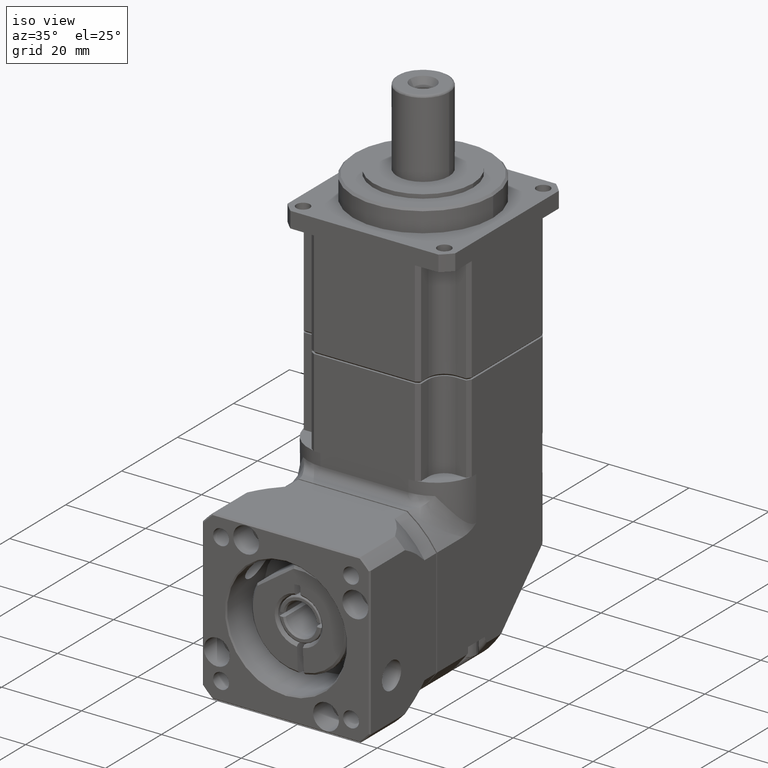
[diagram: clean part render]
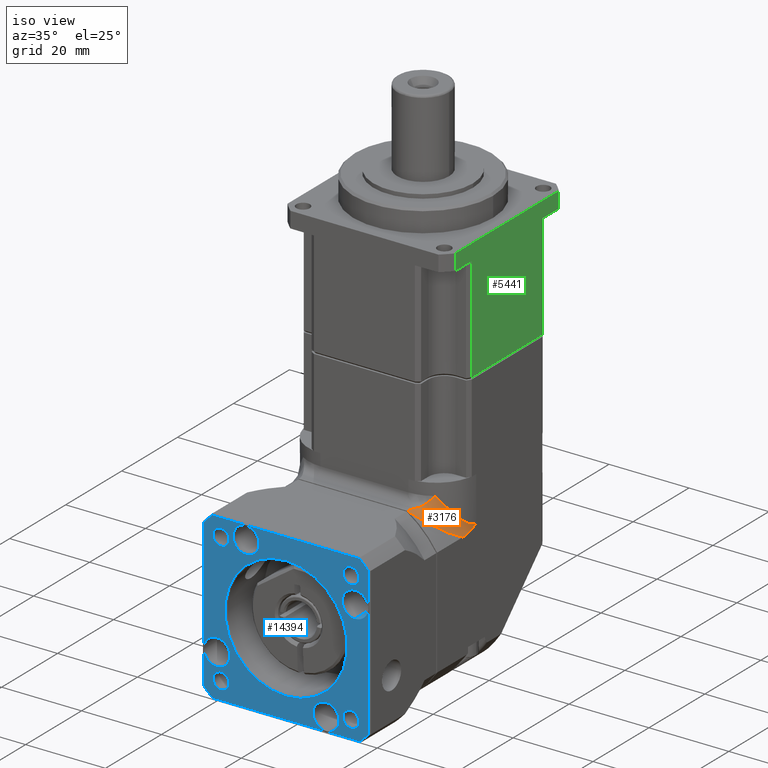
[diagram: same view with three faces highlighted in distinct colors, each labeled with its STEP entity id]
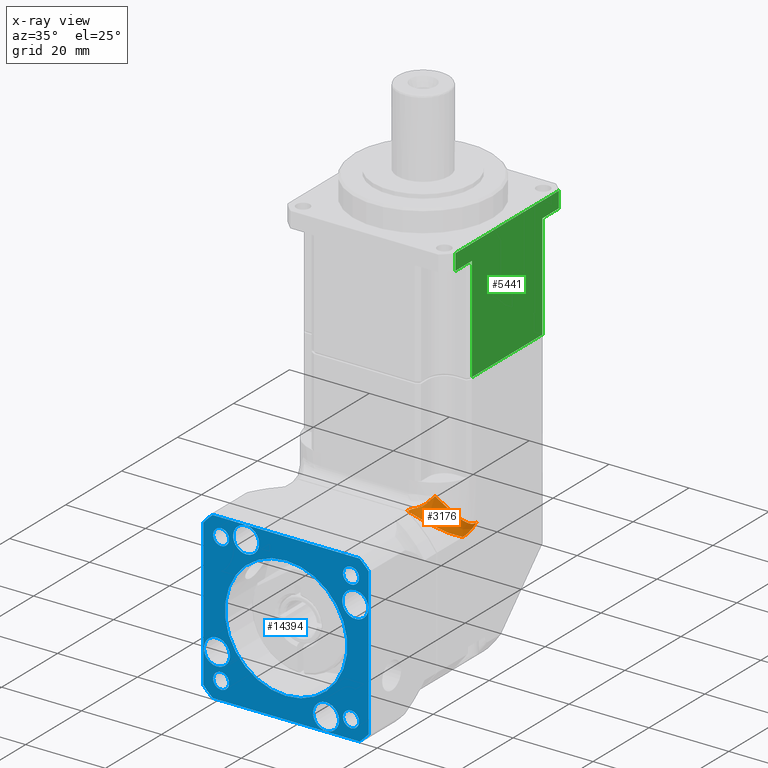
[diagram: x-ray of the same camera — body ghosted, the three highlighted faces saturated]
A machine part, iso view with three faces highlighted in distinct colors.
The next image is the same camera in x-ray (body ghosted, the three faces saturated) — at least one of them is partly hidden behind the body in this view.
Their STEP definitions:

[orange] entity #3176 — the highlighted face is a freeform B-spline surface patch.
#108 = CARTESIAN_POINT ( 'NONE',  ( 21.00000000000000000, 11.78850872954681300, -15.08398018612353100 ) ) ;
#243 = CARTESIAN_POINT ( 'NONE',  ( 19.55375498839907800, 8.818128298141456200, -10.77481007368166700 ) ) ;
#246 = CARTESIAN_POINT ( 'NONE',  ( 20.99999999999999600, 13.82935090452482100, -14.15367475274821100 ) ) ;
#325 = B_SPLINE_CURVE_WITH_KNOTS ( 'NONE', 3,
 ( #18995, #4136, #2619, #10048, #1076, #2552, #13038, #14547, #11677, #16065, #7073, #8607, #13096, #14604, #5650, #16125, #7140, #17623, #13158, #19252, #14865, #1322, #5906, #11999, #11740, #17957, #19190 ),
 .UNSPECIFIED., .F., .F.,
 ( 4, 2, 2, 2, 1, 1, 1, 2, 2, 2, 1, 1, 1, 1, 2, 2, 4 ),
 ( 0.0000000000000000000, 0.2499999999999990600, 0.3749999999999986100, 0.4374999999999985000, 0.4687499999999983900, 0.4843749999999985000, 0.4921874999999985000, 0.4960937499999983900, 0.4999999999999983300, 0.6250000000000006700, 0.6875000000000020000, 0.7187500000000028900, 0.7343750000000032200, 0.7421875000000036600, 0.7460937500000040000, 0.7500000000000042200, 1.000000000000000000 ),
 .UNSPECIFIED. ) ;
#874 = B_SPLINE_CURVE_WITH_KNOTS ( 'NONE', 3,
 ( #5837, #14795, #7138, #11794, #10242, #1248, #17694, #4066, #13294, #4254, #16124, #11676, #4134, #14546, #7071, #2813, #5649, #19055, #16312, #7338, #2618, #10107, #19189, #5586, #16063, #17555, #16179, #13095, #1130, #8667, #19131, #11738, #10167, #13157, #2685, #14677, #4191, #7200, #2753, #16236, #17758, #13227, #14739, #5777, #19251, #10301, #1320, #3153, #243, #7681, #7537, #16646, #3021, #14863, #4524, #2876, #1508, #5905, #6106, #16586, #13629, #7472, #1380, #9200, #10573, #16445, #11866, #13494, #17955, #11932, #16515, #13356, #4673, #4396, #1580, #18018, #15134, #8927, #18151, #8994, #16377 ),
 .UNSPECIFIED., .F., .F.,
 ( 4, 2, 2, 2, 2, 1, 1, 2, 2, 2, 2, 1, 1, 1, 2, 2, 2, 2, 1, 1, 2, 2, 2, 2, 2, 1, 1, 1, 2, 2, 1, 2, 2, 1, 1, 1, 1, 2, 2, 2, 2, 2, 1, 1, 1, 1, 2, 2, 2, 4 ),
 ( 0.0000000000000000000, 0.06249999999998577500, 0.1249999999999715500, 0.1874999999999573100, 0.2187499999999502100, 0.2343749999999466500, 0.2421874999999449300, 0.2460937499999438200, 0.2499999999999427100, 0.2812499999999343900, 0.2968749999999302800, 0.3046874999999282200, 0.3085937499999276100, 0.3105468749999276700, 0.3115234374999276100, 0.3124999999999275600, 0.3437499999999081300, 0.3593749999998985800, 0.3671874999998937000, 0.3710937499998914200, 0.3730468749998902000, 0.3749999999998889800, 0.4374999999998572800, 0.4687499999998414600, 0.4843749999998337400, 0.4921874999998296900, 0.4960937499998279200, 0.4980468749998272500, 0.4990234374998264700, 0.4999999999998256900, 0.5624999999997786200, 0.5937499999997547500, 0.6093749999997427600, 0.6171874999997369900, 0.6210937499997341000, 0.6230468749997326600, 0.6240234374997317700, 0.6245117187497314400, 0.6249999999997311000, 0.6874999999997764000, 0.7187499999997988300, 0.7343749999998100400, 0.7421874999998155900, 0.7460937499998183700, 0.7480468749998197000, 0.7490234374998202500, 0.7495117187498204800, 0.7499999999998207000, 0.8749999999999102900, 1.000000000000000000 ),
 .UNSPECIFIED. ) ;
#1076 = CARTESIAN_POINT ( 'NONE',  ( 19.46127258865169900, 5.463772844358938000, -13.30152707316426900 ) ) ;
#1130 = CARTESIAN_POINT ( 'NONE',  ( 20.23892031696768300, 10.17175195361264000, -12.20654858877361600 ) ) ;
#1176 = CARTESIAN_POINT ( 'NONE',  ( 15.39056160243970200, 4.383180223341620200, -7.399523360359869400 ) ) ;
#1219 = CARTESIAN_POINT ( 'NONE',  ( 20.99999712522957300, 14.00000000094810200, -14.03337045290828700 ) ) ;
#1233 = EDGE_LOOP ( 'NONE', ( #7644, #2581, #4100, #3341, #18987, #11636 ) ) ;
#1235 = CARTESIAN_POINT ( 'NONE',  ( 15.90076988215665900, 5.112968219545483500, -6.756067003944371800 ) ) ;
#1248 = CARTESIAN_POINT ( 'NONE',  ( 20.80813248668775700, 12.03837800665824400, -13.54312616055086600 ) ) ;
#1307 = CARTESIAN_POINT ( 'NONE',  ( 14.94038317424496000, 3.538736310272464300, -7.823431184030856600 ) ) ;
#1320 = CARTESIAN_POINT ( 'NONE',  ( 19.55568170982678900, 8.821302186639865500, -10.77858268442015600 ) ) ;
#1322 = CARTESIAN_POINT ( 'NONE',  ( 16.30165636176996800, 1.676274954392096500, -10.04594443827142500 ) ) ;
#1335 = CARTESIAN_POINT ( 'NONE',  ( 17.67124304210580000, 2.913410936201109800, -11.26939810141330000 ) ) ;
#1380 = CARTESIAN_POINT ( 'NONE',  ( 18.87241724351021000, 7.833071341894775100, -9.516638071517174800 ) ) ;
#1454 = CARTESIAN_POINT ( 'NONE',  ( 16.27684291154690000, 5.451755036653140400, -5.663664363461459800 ) ) ;
#1507 = EDGE_CURVE ( 'NONE', #11819, #2969, #8016, .T. ) ;
#1508 = CARTESIAN_POINT ( 'NONE',  ( 18.94362481697042000, 7.925533867379475500, -9.641631729755053100 ) ) ;
#1529 = CARTESIAN_POINT ( 'NONE',  ( 19.95307158026789900, 6.282063022678363100, -13.89592356393820100 ) ) ;
#1580 = CARTESIAN_POINT ( 'NONE',  ( 18.20482365353597500, 7.065190349519721900, -8.403612758138169900 ) ) ;
#1605 = CARTESIAN_POINT ( 'NONE',  ( 13.59474370864486300, -7.898920189539795700E-017, -8.019369165909481000 ) ) ;
#2161 = EDGE_CURVE ( 'NONE', #5887, #5253, #10892, .T. ) ;
#2474 = B_SPLINE_CURVE_WITH_KNOTS ( 'NONE', 3,
 ( #17678, #2543, #18981, #4310, #11595, #19181, #10233, #17745, #8522, #7000, #17615, #1235, #13027, #8596, #2741, #13213, #8658, #11666, #14530, #4245, #1176, #5634, #4053, #17491, #19245, #14727, #7254, #5766, #1307, #14594, #10037, #11783, #17546, #19117 ),
 .UNSPECIFIED., .F., .F.,
 ( 4, 2, 2, 1, 1, 1, 2, 2, 2, 2, 1, 1, 2, 2, 2, 2, 1, 2, 2, 4 ),
 ( 0.0000000000000000000, 0.1250000000000336400, 0.1875000000000509600, 0.2187500000000589500, 0.2343750000000631700, 0.2421875000000654800, 0.2460937500000659500, 0.2500000000000663900, 0.3750000000000545100, 0.4375000000000487400, 0.4687500000000460200, 0.4843750000000451900, 0.4921875000000444600, 0.5000000000000437400, 0.6250000000000312000, 0.6875000000000252000, 0.7187500000000222000, 0.7343750000000208700, 0.7500000000000195400, 1.000000000000000000 ),
 .UNSPECIFIED. ) ;
#2543 = CARTESIAN_POINT ( 'NONE',  ( 16.37622985515426400, 5.566289627080204900, -6.152777535574976800 ) ) ;
#2552 = CARTESIAN_POINT ( 'NONE',  ( 19.04970158939260100, 4.806041803478863500, -12.80880902755473000 ) ) ;
#2581 = ORIENTED_EDGE ( 'NONE', *, *, #17885, .F. ) ;
#2618 = CARTESIAN_POINT ( 'NONE',  ( 20.37805251494549800, 10.52797331571579600, -12.51897692831781100 ) ) ;
#2619 = CARTESIAN_POINT ( 'NONE',  ( 20.37722274056218200, 7.268307129963536900, -14.49778087283904200 ) ) ;
#2685 = CARTESIAN_POINT ( 'NONE',  ( 20.10725238535496100, 9.867593242021625200, -11.91747779511682200 ) ) ;
#2741 = CARTESIAN_POINT ( 'NONE',  ( 15.57718074746255600, 4.683920412419817900, -7.173474110741064900 ) ) ;
#2753 = CARTESIAN_POINT ( 'NONE',  ( 19.72980246759309600, 9.118915836417883700, -11.12527504223410100 ) ) ;
#2765 = CARTESIAN_POINT ( 'NONE',  ( 20.99946546963540000, 14.10527947705669900, -15.36884611139059800 ) ) ;
#2808 = CARTESIAN_POINT ( 'NONE',  ( 13.97030157803776100, 1.710591744956316800, -7.999999999999996400 ) ) ;
#2813 = CARTESIAN_POINT ( 'NONE',  ( 20.51799255233680700, 10.93112319806958000, -12.84208024148003700 ) ) ;
#2823 = CARTESIAN_POINT ( 'NONE',  ( 17.80366110047770100, 6.608940624215333200, -7.723277721381539800 ) ) ;
#2876 = CARTESIAN_POINT ( 'NONE',  ( 18.96825790192356500, 7.957826568447828200, -9.685074630556268700 ) ) ;
#2950 = CARTESIAN_POINT ( 'NONE',  ( 13.56493961638537400, 1.944062011971074300E-008, -8.000001510793596900 ) ) ;
#2969 = VERTEX_POINT ( 'NONE', #5603 ) ;
#3021 = CARTESIAN_POINT ( 'NONE',  ( 19.05859120115376700, 8.078751803235990200, -9.846020659552028300 ) ) ;
#3089 = CARTESIAN_POINT ( 'NONE',  ( 21.00000000000000000, 13.23287771532890900, -14.50381881507347100 ) ) ;
#3153 = CARTESIAN_POINT ( 'NONE',  ( 19.55394733788072200, 8.818445547615381100, -10.77518695051857200 ) ) ;
#3158 = CARTESIAN_POINT ( 'NONE',  ( 21.00000000000000400, 13.56268867470118500, -14.32370271429898900 ) ) ;
#3176 = ADVANCED_FACE ( 'NONE', ( #7416 ), #5179, .T. ) ;
#3341 = ORIENTED_EDGE ( 'NONE', *, *, #13413, .T. ) ;
#4012 = CARTESIAN_POINT ( 'NONE',  ( 16.50766258922685000, 5.653211221387548100, -6.000000140545081400 ) ) ;
#4053 = CARTESIAN_POINT ( 'NONE',  ( 15.29562149653557600, 4.220726158007952500, -7.508660392752877200 ) ) ;
#4066 = CARTESIAN_POINT ( 'NONE',  ( 20.68230375389511600, 11.49885580997404800, -13.23453095505516500 ) ) ;
#4100 = ORIENTED_EDGE ( 'NONE', *, *, #2161, .F. ) ;
#4134 = CARTESIAN_POINT ( 'NONE',  ( 20.56256523092195800, 11.07512595080704500, -12.94757608027713900 ) ) ;
#4136 = CARTESIAN_POINT ( 'NONE',  ( 20.72659983460378500, 8.203093100574385200, -15.01207832987233500 ) ) ;
#4191 = CARTESIAN_POINT ( 'NONE',  ( 19.97946485864121900, 9.586588986205518000, -11.64048250814510900 ) ) ;
#4245 = CARTESIAN_POINT ( 'NONE',  ( 15.39990869835237300, 4.399051687113539400, -7.388682320713456900 ) ) ;
#4254 = CARTESIAN_POINT ( 'NONE',  ( 20.61613408888036500, 11.25641060250536500, -13.07520310233268500 ) ) ;
#4270 = CARTESIAN_POINT ( 'NONE',  ( 20.10155645793150100, 9.722886546562170600, -11.87738323190479900 ) ) ;
#4310 = CARTESIAN_POINT ( 'NONE',  ( 16.10923558430729600, 5.334586959817761100, -6.486129277096282800 ) ) ;
#4328 = CARTESIAN_POINT ( 'NONE',  ( 13.74696287659861800, 1.089029548334191600, -7.999999999999994700 ) ) ;
#4340 = CARTESIAN_POINT ( 'NONE',  ( 20.69607582413669900, 11.19418721814550600, -14.88311214056930100 ) ) ;
#4396 = CARTESIAN_POINT ( 'NONE',  ( 18.20795116864111000, 7.068441165653973200, -8.408584177822561400 ) ) ;
#4459 = VERTEX_POINT ( 'NONE', #4012 ) ;
#4489 = CARTESIAN_POINT ( 'NONE',  ( 13.65430576109639900, -1.081222923669303900E-010, -8.058173554022340900 ) ) ;
#4524 = CARTESIAN_POINT ( 'NONE',  ( 18.98923342870411800, 7.985623769441155600, -9.722264184159435300 ) ) ;
#4673 = CARTESIAN_POINT ( 'NONE',  ( 18.21263406410880100, 7.073311987683902100, -8.416030459440573700 ) ) ;
#4736 = CARTESIAN_POINT ( 'NONE',  ( 20.99999999999999300, 10.90145463127017000, -15.32793844234629400 ) ) ;
#5179 =( BOUNDED_SURFACE ( )  B_SPLINE_SURFACE ( 3, 2, ( 
 ( #8743, #2765, #14880 ),
 ( #10258, #17769, #16385 ),
 ( #13241, #4340, #7484 ),
 ( #4270, #14746, #7424 ),
 ( #5794, #19266, #1529 ),
 ( #17898, #19387, #13310 ),
 ( #2823, #10312, #1335 ),
 ( #1454, #14808, #11944 ),
 ( #5849, #9011, #7353 ),
 ( #17827, #8883, #16460 ) ),
 .UNSPECIFIED., .F., .F., .F. ) 
 B_SPLINE_SURFACE_WITH_KNOTS ( ( 4, 2, 2, 2, 4 ),
 ( 3, 3 ),
 ( 0.0000000000000000000, 0.2500000000000000000, 0.5000000000000000000, 0.7500000000000000000, 1.000000000000000000 ),
 ( 0.0000000000000000000, 1.000000000000000000 ),
 .UNSPECIFIED. ) 
 GEOMETRIC_REPRESENTATION_ITEM ( )  RATIONAL_B_SPLINE_SURFACE ( (
 ( 1.000000000000000000, 0.9660788729791079900, 1.000000000000000000),
 ( 1.000000000000000000, 0.9665005814449150200, 1.000000000000000000),
 ( 1.000000000000000000, 0.9588836373102089800, 1.000000000000000000),
 ( 1.000000000000000000, 0.9347727506918700500, 1.000000000000000000),
 ( 1.000000000000000000, 0.9186306055356759900, 1.000000000000000000),
 ( 1.000000000000000000, 0.8813037851519730500, 1.000000000000000000),
 ( 1.000000000000000000, 0.8599361892597150400, 1.000000000000000000),
 ( 1.000000000000000000, 0.8157124185144789500, 1.000000000000000000),
 ( 1.000000000000000000, 0.7925867161254019900, 1.000000000000000000),
 ( 1.000000000000000000, 0.7702634800136679600, 1.000000000000000000) ) ) 
 REPRESENTATION_ITEM ( '' )  SURFACE ( )  );
#5253 = VERTEX_POINT ( 'NONE', #13408 ) ;
#5586 = CARTESIAN_POINT ( 'NONE',  ( 20.35117283935244700, 10.45618791902639100, -12.45817346725671500 ) ) ;
#5603 = CARTESIAN_POINT ( 'NONE',  ( 13.65430576109639900, -1.081222923669303900E-010, -8.058173554022340900 ) ) ;
#5634 = CARTESIAN_POINT ( 'NONE',  ( 15.38662458984396900, 4.376472914788383400, -7.404073009453569800 ) ) ;
#5649 = CARTESIAN_POINT ( 'NONE',  ( 20.48547051471815200, 10.83195048119946500, -12.76593788541660300 ) ) ;
#5650 = CARTESIAN_POINT ( 'NONE',  ( 17.96737716909333600, 3.333687135207665400, -11.61087022420040100 ) ) ;
#5766 = CARTESIAN_POINT ( 'NONE',  ( 14.96919611537232500, 3.595735818862535900, -7.803817771860285500 ) ) ;
#5777 = CARTESIAN_POINT ( 'NONE',  ( 19.57736993074458100, 8.857174008934983100, -10.82113704804581300 ) ) ;
#5794 = CARTESIAN_POINT ( 'NONE',  ( 19.62912393129489900, 8.854708681741559700, -10.87510827628710100 ) ) ;
#5837 = CARTESIAN_POINT ( 'NONE',  ( 20.99999712522957300, 14.00000000094810200, -14.03337045290828700 ) ) ;
#5849 = CARTESIAN_POINT ( 'NONE',  ( 15.42188128210320000, 4.972190446050800200, -4.668331748993411500 ) ) ;
#5887 = VERTEX_POINT ( 'NONE', #1219 ) ;
#5905 = CARTESIAN_POINT ( 'NONE',  ( 18.93126795338172000, 7.909421937399113000, -9.619896945104709800 ) ) ;
#5906 = CARTESIAN_POINT ( 'NONE',  ( 16.27903300468814500, 1.657442252552435900, -10.02651042094251300 ) ) ;
#6054 = CARTESIAN_POINT ( 'NONE',  ( 20.99999999999998900, 10.06210590241370500, -15.43534003621600400 ) ) ;
#6106 = CARTESIAN_POINT ( 'NONE',  ( 18.92507945233144900, 7.901374587412576000, -9.609026273945914900 ) ) ;
#7000 = CARTESIAN_POINT ( 'NONE',  ( 15.90701809624433100, 5.120185507638048300, -6.747930642257285800 ) ) ;
#7071 = CARTESIAN_POINT ( 'NONE',  ( 20.55304136216467000, 11.04409566216394900, -12.92500680185757000 ) ) ;
#7073 = CARTESIAN_POINT ( 'NONE',  ( 18.35108478981197400, 3.824358976497831600, -12.02238875408081100 ) ) ;
#7138 = CARTESIAN_POINT ( 'NONE',  ( 20.98384448631154300, 13.36810912747458200, -13.99050451635549700 ) ) ;
#7140 = CARTESIAN_POINT ( 'NONE',  ( 17.13757817388409100, 2.437172300867586700, -10.79675991789207700 ) ) ;
#7199 = CARTESIAN_POINT ( 'NONE',  ( 14.16595127172884500, 2.104728597145163200, -7.999999999999994700 ) ) ;
#7200 = CARTESIAN_POINT ( 'NONE',  ( 19.86943704388583500, 9.374224740203589000, -11.41068869146716300 ) ) ;
#7254 = CARTESIAN_POINT ( 'NONE',  ( 14.99812133684100400, 3.652806512180140100, -7.782428405159728300 ) ) ;
#7336 = CARTESIAN_POINT ( 'NONE',  ( 13.68416911555059200, 0.8751142392690575100, -7.999999999998905800 ) ) ;
#7338 = CARTESIAN_POINT ( 'NONE',  ( 20.39128795009259700, 10.56408150345617100, -12.54910067799389700 ) ) ;
#7353 = CARTESIAN_POINT ( 'NONE',  ( 14.69416856372689900, 0.4583521453935130400, -8.723706113237780000 ) ) ;
#7416 = FACE_OUTER_BOUND ( 'NONE', #1233, .T. ) ;
#7424 = CARTESIAN_POINT ( 'NONE',  ( 20.54361224056840000, 7.584329819536623800, -14.73115269276890000 ) ) ;
#7472 = CARTESIAN_POINT ( 'NONE',  ( 18.91924726607488300, 7.893803778605828800, -9.598790276546498700 ) ) ;
#7484 = CARTESIAN_POINT ( 'NONE',  ( 21.41385877984890100, 10.60057106226570100, -16.07379949387290100 ) ) ;
#7537 = CARTESIAN_POINT ( 'NONE',  ( 19.30194743592752400, 8.419365650456251500, -10.28942840179943400 ) ) ;
#7607 = CARTESIAN_POINT ( 'NONE',  ( 21.00000000000000400, 12.04561693501342600, -15.00612579854027300 ) ) ;
#7644 = ORIENTED_EDGE ( 'NONE', *, *, #1507, .T. ) ;
#7681 = CARTESIAN_POINT ( 'NONE',  ( 19.45452733178386100, 8.654878568634552800, -10.58064767537840300 ) ) ;
#8016 = B_SPLINE_CURVE_WITH_KNOTS ( 'NONE', 3,
 ( #13453, #1605, #16548, #4489 ),
 .UNSPECIFIED., .F., .F.,
 ( 4, 4 ),
 ( 0.0000000000000000000, 0.0001066310812432353700 ),
 .UNSPECIFIED. ) ;
#8522 = CARTESIAN_POINT ( 'NONE',  ( 15.91411131709101500, 5.128351210978491900, -6.738693123979987700 ) ) ;
#8596 = CARTESIAN_POINT ( 'NONE',  ( 15.70547567961429500, 4.870995118471850700, -7.010512592440157700 ) ) ;
#8607 = CARTESIAN_POINT ( 'NONE',  ( 18.32022437248474500, 3.784542224265952500, -11.98913263489988700 ) ) ;
#8658 = CARTESIAN_POINT ( 'NONE',  ( 15.47649266664502200, 4.525980415162067900, -7.297741096059688500 ) ) ;
#8667 = CARTESIAN_POINT ( 'NONE',  ( 20.21560370395333100, 10.11553239335683200, -12.15479823907836900 ) ) ;
#8743 = CARTESIAN_POINT ( 'NONE',  ( 20.99963495341609800, 14.08544470971540000, -14.03241925581460100 ) ) ;
#8883 = CARTESIAN_POINT ( 'NONE',  ( 12.45670894859199900, 3.879270217266339600, -7.289732372265359700 ) ) ;
#8927 = CARTESIAN_POINT ( 'NONE',  ( 17.67663052222076200, 6.546259962366590000, -7.586702896219488700 ) ) ;
#8994 = CARTESIAN_POINT ( 'NONE',  ( 16.81679847056211900, 5.857318441686747900, -6.389492486367934100 ) ) ;
#9011 = CARTESIAN_POINT ( 'NONE',  ( 13.47930866771870000, 4.029262928220999700, -7.864065053342790700 ) ) ;
#9197 = CARTESIAN_POINT ( 'NONE',  ( 13.56791966559787400, 0.2226423796274739400, -7.999999999999996400 ) ) ;
#9200 = CARTESIAN_POINT ( 'NONE',  ( 18.79274292335713900, 7.730467099518353500, -9.376624930034749300 ) ) ;
#9269 = CARTESIAN_POINT ( 'NONE',  ( 20.99999999999999600, 12.98972737725761900, -14.62508632695388000 ) ) ;
#10037 = CARTESIAN_POINT ( 'NONE',  ( 14.91240150590843400, 3.483361155245092700, -7.841764228905626400 ) ) ;
#10048 = CARTESIAN_POINT ( 'NONE',  ( 19.70842373271895200, 5.909486611125328400, -13.61447350497000700 ) ) ;
#10107 = CARTESIAN_POINT ( 'NONE',  ( 20.36241873746868700, 10.48605015522422000, -12.48357024557579600 ) ) ;
#10147 = CARTESIAN_POINT ( 'NONE',  ( 14.38709234049544600, 2.487841533060442900, -7.999964770271854600 ) ) ;
#10167 = CARTESIAN_POINT ( 'NONE',  ( 20.12748554978143300, 9.912550710903175900, -11.96145824811270600 ) ) ;
#10233 = CARTESIAN_POINT ( 'NONE',  ( 15.96552259551515400, 5.186258616413487000, -6.671745554292035900 ) ) ;
#10242 = CARTESIAN_POINT ( 'NONE',  ( 20.89389024069650300, 12.53088853207170300, -13.75860267200780200 ) ) ;
#10258 = CARTESIAN_POINT ( 'NONE',  ( 21.00994494269420100, 12.87886176856650000, -14.05928271877660100 ) ) ;
#10301 = CARTESIAN_POINT ( 'NONE',  ( 19.55829869896027900, 8.825615012076941200, -10.78370801849335700 ) ) ;
#10312 = CARTESIAN_POINT ( 'NONE',  ( 16.47905618061140500, 5.382756194789423400, -10.08966313326140000 ) ) ;
#10513 = CARTESIAN_POINT ( 'NONE',  ( 21.00000000000000000, 12.69657240660342400, -14.76188183298234200 ) ) ;
#10573 = CARTESIAN_POINT ( 'NONE',  ( 18.61656741243913900, 7.519496957206271800, -9.077117753273942200 ) ) ;
#10892 = B_SPLINE_CURVE_WITH_KNOTS ( 'NONE', 3,
 ( #12078, #246, #3158, #3089, #13634, #9269, #12208, #10513, #13562, #7607, #12004, #108, #14998, #15140, #4736, #6054, #15275 ),
 .UNSPECIFIED., .F., .F.,
 ( 4, 1, 1, 2, 2, 1, 1, 1, 2, 2, 4 ),
 ( 0.0000000000000000000, 0.1249999999999998300, 0.1874999999999997500, 0.2187499999999995000, 0.2499999999999992200, 0.3749999999999986700, 0.4374999999999979500, 0.4687499999999972200, 0.4843749999999973400, 0.4999999999999975000, 1.000000000000000000 ),
 .UNSPECIFIED. ) ;
#11268 = EDGE_CURVE ( 'NONE', #4459, #18388, #2474, .T. ) ;
#11595 = CARTESIAN_POINT ( 'NONE',  ( 16.06233809222416300, 5.288326114532524400, -6.546345759960289900 ) ) ;
#11636 = ORIENTED_EDGE ( 'NONE', *, *, #14421, .T. ) ;
#11666 = CARTESIAN_POINT ( 'NONE',  ( 15.44724681402916600, 4.478414346650792400, -7.333040312544641300 ) ) ;
#11676 = CARTESIAN_POINT ( 'NONE',  ( 20.57262823064929300, 11.10816486685535400, -12.97144947886303800 ) ) ;
#11677 = CARTESIAN_POINT ( 'NONE',  ( 18.56278730823464700, 4.104113626601851200, -12.25343616546436500 ) ) ;
#11738 = CARTESIAN_POINT ( 'NONE',  ( 20.15448855813108500, 9.973374161919315000, -12.02036716048900400 ) ) ;
#11740 = CARTESIAN_POINT ( 'NONE',  ( 15.45667764103742100, 0.9778321710271951100, -9.322623893046184700 ) ) ;
#11783 = CARTESIAN_POINT ( 'NONE',  ( 14.73596335131108700, 3.134251988224691300, -7.951312361685888100 ) ) ;
#11794 = CARTESIAN_POINT ( 'NONE',  ( 20.93082069311571300, 12.79657488360332200, -13.85315035236721600 ) ) ;
#11819 = VERTEX_POINT ( 'NONE', #17619 ) ;
#11866 = CARTESIAN_POINT ( 'NONE',  ( 18.43042657071415000, 7.307230990245804100, -8.767762320371117500 ) ) ;
#11932 = CARTESIAN_POINT ( 'NONE',  ( 18.28708288755826000, 7.151529113747193000, -8.534991750243635900 ) ) ;
#11944 = CARTESIAN_POINT ( 'NONE',  ( 15.76272030625830000, 1.177632555101600000, -9.553053635955839300 ) ) ;
#11999 = CARTESIAN_POINT ( 'NONE',  ( 16.26886716309479700, 1.649007113897897200, -10.01779170536672900 ) ) ;
#12004 = CARTESIAN_POINT ( 'NONE',  ( 20.99999999999999600, 11.86598260409504000, -15.06143859500130400 ) ) ;
#12078 = CARTESIAN_POINT ( 'NONE',  ( 20.99999712522957300, 14.00000000094810200, -14.03337045290828700 ) ) ;
#12208 = CARTESIAN_POINT ( 'NONE',  ( 21.00000000000000000, 12.93910282281325900, -14.64923997459095000 ) ) ;
#13027 = CARTESIAN_POINT ( 'NONE',  ( 15.79758217943864600, 4.993104090275251000, -6.890409273655455600 ) ) ;
#13038 = CARTESIAN_POINT ( 'NONE',  ( 18.90570026584526500, 4.588604724730425100, -12.64069720583951000 ) ) ;
#13095 = CARTESIAN_POINT ( 'NONE',  ( 20.29983882500314300, 10.32159494094216300, -12.34234381606181500 ) ) ;
#13096 = CARTESIAN_POINT ( 'NONE',  ( 18.29959156257870800, 3.758011836852603900, -11.96693867168880700 ) ) ;
#13155 = CARTESIAN_POINT ( 'NONE',  ( 14.38709234049544600, 2.487841533060442900, -7.999964770271854600 ) ) ;
#13157 = CARTESIAN_POINT ( 'NONE',  ( 20.11541312542278300, 9.885682195028309100, -11.93520511924325900 ) ) ;
#13158 = CARTESIAN_POINT ( 'NONE',  ( 16.57098724392384900, 1.906359681964164400, -10.28030264252822000 ) ) ;
#13213 = CARTESIAN_POINT ( 'NONE',  ( 15.53605125906683200, 4.620907568142211400, -7.224942707623413600 ) ) ;
#13227 = CARTESIAN_POINT ( 'NONE',  ( 19.61356595045738900, 8.917816422555878500, -10.89259641809913300 ) ) ;
#13241 = CARTESIAN_POINT ( 'NONE',  ( 20.79775369173571400, 11.73371404130599900, -13.48855939206530000 ) ) ;
#13294 = CARTESIAN_POINT ( 'NONE',  ( 20.65600461625362500, 11.39921639210681500, -13.17091977733271900 ) ) ;
#13310 = CARTESIAN_POINT ( 'NONE',  ( 18.52025234230820100, 3.944126979071310000, -12.16971647146369900 ) ) ;
#13356 = CARTESIAN_POINT ( 'NONE',  ( 18.22350227028107000, 7.084639319074896400, -8.433329157060086300 ) ) ;
#13408 = CARTESIAN_POINT ( 'NONE',  ( 20.99999816769550500, 9.166785722745920900, -15.43533391373391500 ) ) ;
#13413 = EDGE_CURVE ( 'NONE', #5887, #4459, #874, .T. ) ;
#13453 = CARTESIAN_POINT ( 'NONE',  ( 13.56493961638537400, 1.944062011971074300E-008, -8.000001510793596900 ) ) ;
#13494 = CARTESIAN_POINT ( 'NONE',  ( 18.38852270217535100, 7.260934437662949200, -8.699154141213268700 ) ) ;
#13562 = CARTESIAN_POINT ( 'NONE',  ( 20.99999999999999600, 12.40033342474027500, -14.88463720358145200 ) ) ;
#13629 = CARTESIAN_POINT ( 'NONE',  ( 18.92065502114980500, 7.895629969420118000, -9.601260193413537500 ) ) ;
#13634 = CARTESIAN_POINT ( 'NONE',  ( 21.00000000000000000, 13.08752194175978500, -14.57710074661223100 ) ) ;
#14421 = EDGE_CURVE ( 'NONE', #18388, #11819, #17414, .T. ) ;
#14530 = CARTESIAN_POINT ( 'NONE',  ( 15.41398675138679400, 4.422860785463973900, -7.372281614353495300 ) ) ;
#14546 = CARTESIAN_POINT ( 'NONE',  ( 20.55585615909214800, 11.05323412901370800, -12.93167378128578400 ) ) ;
#14547 = CARTESIAN_POINT ( 'NONE',  ( 18.67889268612004400, 4.265159008925149200, -12.38338058949223500 ) ) ;
#14594 = CARTESIAN_POINT ( 'NONE',  ( 14.92119188121856200, 3.500760706462140000, -7.836113918381697900 ) ) ;
#14604 = CARTESIAN_POINT ( 'NONE',  ( 18.28860400424121500, 3.743934354468090800, -11.95514250084279500 ) ) ;
#14677 = CARTESIAN_POINT ( 'NONE',  ( 20.10265529037185300, 9.857447960213619400, -11.90750336287516100 ) ) ;
#14727 = CARTESIAN_POINT ( 'NONE',  ( 15.05621321545248600, 3.766939809205549900, -7.737265191562957300 ) ) ;
#14739 = CARTESIAN_POINT ( 'NONE',  ( 19.58911859375726600, 8.876781330800573900, -10.84429077271675400 ) ) ;
#14746 = CARTESIAN_POINT ( 'NONE',  ( 19.68944503700908300, 8.784776310452709700, -13.49872807934490000 ) ) ;
#14795 = CARTESIAN_POINT ( 'NONE',  ( 20.99995124064739800, 13.67396979683235600, -14.03337045293190900 ) ) ;
#14808 = CARTESIAN_POINT ( 'NONE',  ( 14.52462035168420100, 4.358041276981250400, -8.553052233740897800 ) ) ;
#14863 = CARTESIAN_POINT ( 'NONE',  ( 19.03099894933779600, 8.041374443336966500, -9.796576331067946300 ) ) ;
#14865 = CARTESIAN_POINT ( 'NONE',  ( 16.33555368922468500, 1.704595801984853500, -10.07511584023596800 ) ) ;
#14880 = CARTESIAN_POINT ( 'NONE',  ( 21.66621035843680000, 14.12816706457310000, -16.52701604651219800 ) ) ;
#14998 = CARTESIAN_POINT ( 'NONE',  ( 21.00000000000000000, 11.73675109479775900, -15.09874927063270200 ) ) ;
#15134 = CARTESIAN_POINT ( 'NONE',  ( 17.94621947739761600, 6.796754369648027700, -7.992813683782761000 ) ) ;
#15140 = CARTESIAN_POINT ( 'NONE',  ( 21.00000000000000000, 11.70931139032345100, -15.10641763917209000 ) ) ;
#15275 = CARTESIAN_POINT ( 'NONE',  ( 20.99999816769550500, 9.166785722745920900, -15.43533391373391500 ) ) ;
#16063 = CARTESIAN_POINT ( 'NONE',  ( 20.34891657418176100, 10.45022289624306900, -12.45308462357978400 ) ) ;
#16065 = CARTESIAN_POINT ( 'NONE',  ( 18.42247289316390300, 3.917412929488528900, -12.09973997402327800 ) ) ;
#16124 = CARTESIAN_POINT ( 'NONE',  ( 20.59609221444122400, 11.18667075170096800, -13.02726593109175600 ) ) ;
#16125 = CARTESIAN_POINT ( 'NONE',  ( 17.64316311280813200, 2.960377619618853400, -11.28173439678019500 ) ) ;
#16179 = CARTESIAN_POINT ( 'NONE',  ( 20.32847598140199000, 10.39633112880856900, -12.40701932888439500 ) ) ;
#16236 = CARTESIAN_POINT ( 'NONE',  ( 19.68743887115042700, 9.044420476809573700, -11.03988726195034600 ) ) ;
#16312 = CARTESIAN_POINT ( 'NONE',  ( 20.41753824413774500, 10.63653268760123400, -12.60904085759847600 ) ) ;
#16377 = CARTESIAN_POINT ( 'NONE',  ( 16.50766258922685000, 5.653211221387548100, -6.000000140545081400 ) ) ;
#16385 = CARTESIAN_POINT ( 'NONE',  ( 21.67909661116080100, 12.31846564624070000, -16.54940012583830000 ) ) ;
#16443 = CARTESIAN_POINT ( 'NONE',  ( 13.59477613147198300, 0.4418462656221656700, -7.999999999998905800 ) ) ;
#16445 = CARTESIAN_POINT ( 'NONE',  ( 18.54834134072824300, 7.439720371230335700, -8.962361051201970200 ) ) ;
#16460 = CARTESIAN_POINT ( 'NONE',  ( 13.48968428903750000, -0.07439472363932439500, -7.951759746190320200 ) ) ;
#16515 = CARTESIAN_POINT ( 'NONE',  ( 18.24500520390219200, 7.107141468092337700, -8.467622526987485200 ) ) ;
#16548 = CARTESIAN_POINT ( 'NONE',  ( 13.62453244501692900, 4.336818581548943200E-016, -8.038759542972240300 ) ) ;
#16586 = CARTESIAN_POINT ( 'NONE',  ( 18.92242508107922600, 7.897927570262561800, -9.604366718134645700 ) ) ;
#16646 = CARTESIAN_POINT ( 'NONE',  ( 19.14065888532024600, 8.191483704099948000, -9.994131249567878700 ) ) ;
#17414 = B_SPLINE_CURVE_WITH_KNOTS ( 'NONE', 3,
 ( #13155, #7199, #2808, #4328, #7336, #16443, #9197, #2950 ),
 .UNSPECIFIED., .F., .F.,
 ( 4, 2, 2, 4 ),
 ( 1.301042606982605300E-018, 0.001318273678104970600, 0.001977410517157455100, 0.002636547356209939500 ),
 .UNSPECIFIED. ) ;
#17491 = CARTESIAN_POINT ( 'NONE',  ( 15.21411169760107800, 4.070353902403082800, -7.594496372082982600 ) ) ;
#17546 = CARTESIAN_POINT ( 'NONE',  ( 14.56970834239181500, 2.804114373599103900, -7.999886846829340900 ) ) ;
#17555 = CARTESIAN_POINT ( 'NONE',  ( 20.34722503490857900, 10.44575928345657600, -12.44927157490340400 ) ) ;
#17615 = CARTESIAN_POINT ( 'NONE',  ( 15.90231287977079300, 5.114752538783991800, -6.754057753745002800 ) ) ;
#17619 = CARTESIAN_POINT ( 'NONE',  ( 13.56493961638537400, 1.944062011971074300E-008, -8.000001510793596900 ) ) ;
#17623 = CARTESIAN_POINT ( 'NONE',  ( 16.87997163382095800, 2.184759380149939200, -10.55645629077045400 ) ) ;
#17678 = CARTESIAN_POINT ( 'NONE',  ( 16.50766258922685000, 5.653211221387548100, -6.000000140545081400 ) ) ;
#17694 = CARTESIAN_POINT ( 'NONE',  ( 20.75929297350275600, 11.81154237985420600, -13.42214412586385200 ) ) ;
#17745 = CARTESIAN_POINT ( 'NONE',  ( 15.93091156263856300, 5.147515039164119300, -6.716811650234189000 ) ) ;
#17758 = CARTESIAN_POINT ( 'NONE',  ( 19.63113156943019500, 8.947599677707422900, -10.92746539807225200 ) ) ;
#17769 = CARTESIAN_POINT ( 'NONE',  ( 21.01456538290520000, 12.61830119003810000, -15.39230727537970000 ) ) ;
#17827 = CARTESIAN_POINT ( 'NONE',  ( 14.45841409789670000, 4.617070184240449600, -3.742111695428382000 ) ) ;
#17885 = EDGE_CURVE ( 'NONE', #5253, #2969, #325, .T. ) ;
#17898 = CARTESIAN_POINT ( 'NONE',  ( 18.48286854009930000, 7.296084652758209700, -8.803659766195119500 ) ) ;
#17955 = CARTESIAN_POINT ( 'NONE',  ( 18.32157783397648400, 7.188496191327772100, -8.590645111814916700 ) ) ;
#17957 = CARTESIAN_POINT ( 'NONE',  ( 14.58935288486904500, 0.4316050558189965000, -8.667838604849940500 ) ) ;
#18018 = CARTESIAN_POINT ( 'NONE',  ( 18.20268567989836900, 7.062969994676825200, -8.400215713610565500 ) ) ;
#18151 = CARTESIAN_POINT ( 'NONE',  ( 17.11168883252857900, 6.076482360717983900, -6.784634884331864200 ) ) ;
#18388 = VERTEX_POINT ( 'NONE', #10147 ) ;
#18981 = CARTESIAN_POINT ( 'NONE',  ( 16.26073400497164600, 5.473501650657928200, -6.294766302661495900 ) ) ;
#18987 = ORIENTED_EDGE ( 'NONE', *, *, #11268, .T. ) ;
#18995 = CARTESIAN_POINT ( 'NONE',  ( 20.99999816769550500, 9.166785722745920900, -15.43533391373391500 ) ) ;
#19055 = CARTESIAN_POINT ( 'NONE',  ( 20.43474639584273300, 10.68514612822557200, -12.64859798864712700 ) ) ;
#19117 = CARTESIAN_POINT ( 'NONE',  ( 14.38709234049544600, 2.487841533060442900, -7.999964770271854600 ) ) ;
#19131 = CARTESIAN_POINT ( 'NONE',  ( 20.17568516682468200, 10.02225125780300500, -12.06689179766777200 ) ) ;
#19181 = CARTESIAN_POINT ( 'NONE',  ( 15.99696606693877100, 5.220089495673177800, -6.630904806407860600 ) ) ;
#19189 = CARTESIAN_POINT ( 'NONE',  ( 20.35455380945694500, 10.46513904209384200, -12.46580215177291300 ) ) ;
#19190 = CARTESIAN_POINT ( 'NONE',  ( 13.65430576109639900, -1.081222923669303900E-010, -8.058173554022340900 ) ) ;
#19245 = CARTESIAN_POINT ( 'NONE',  ( 15.09526324615146300, 3.843019326470958700, -7.703975065621161600 ) ) ;
#19251 = CARTESIAN_POINT ( 'NONE',  ( 19.56451277355264300, 8.835873586072002800, -10.79588905151589500 ) ) ;
#19252 = CARTESIAN_POINT ( 'NONE',  ( 16.41438349199377800, 1.771180343534145600, -10.14332431349734000 ) ) ;
#19266 = CARTESIAN_POINT ( 'NONE',  ( 19.00213003815039800, 7.777062968495396700, -12.64096353463249400 ) ) ;
#19387 = CARTESIAN_POINT ( 'NONE',  ( 17.40949165752970600, 6.071179805806099900, -10.94544402845430800 ) ) ;

[blue] entity #14394 — the highlighted planar face has unit normal (0, 1, 0).
#22 = ORIENTED_EDGE ( 'NONE', *, *, #14193, .F. ) ;
#84 = EDGE_CURVE ( 'NONE', #6431, #1345, #2814, .T. ) ;
#145 = AXIS2_PLACEMENT_3D ( 'NONE', #16814, #332, #15297 ) ;
#191 = DIRECTION ( 'NONE',  ( 0.0000000000000000000, -1.000000000000000000, 0.0000000000000000000 ) ) ;
#332 = DIRECTION ( 'NONE',  ( -0.0000000000000000000, -1.000000000000000000, -0.0000000000000000000 ) ) ;
#412 = VERTEX_POINT ( 'NONE', #2133 ) ;
#417 = VERTEX_POINT ( 'NONE', #2327 ) ;
#464 = CARTESIAN_POINT ( 'NONE',  ( -16.26345596729058600, 0.0000000000000000000, 18.26345596729058600 ) ) ;
#598 = ORIENTED_EDGE ( 'NONE', *, *, #11135, .F. ) ;
#604 = EDGE_CURVE ( 'NONE', #12082, #16408, #7985, .T. ) ;
#637 = DIRECTION ( 'NONE',  ( -0.0000000000000000000, 1.000000000000000000, 9.680376540049145100E-019 ) ) ;
#671 = VERTEX_POINT ( 'NONE', #10740 ) ;
#733 = EDGE_CURVE ( 'NONE', #1345, #6431, #8210, .T. ) ;
#979 = EDGE_CURVE ( 'NONE', #3851, #13247, #13336, .T. ) ;
#1045 = FACE_BOUND ( 'NONE', #15993, .T. ) ;
#1166 = VERTEX_POINT ( 'NONE', #16183 ) ;
#1319 = CARTESIAN_POINT ( 'NONE',  ( 0.0000000000000000000, -7.347880794884121700E-016, -28.00000000000000400 ) ) ;
#1328 = VERTEX_POINT ( 'NONE', #13500 ) ;
#1329 = CIRCLE ( 'NONE', #17074, 2.000000000001282100 ) ;
#1342 = VECTOR ( 'NONE', #12712, 1000.000000000000000 ) ;
#1345 = VERTEX_POINT ( 'NONE', #17943 ) ;
#1469 = DIRECTION ( 'NONE',  ( -0.0000000000000000000, 1.000000000000000000, 0.0000000000000000000 ) ) ;
#1597 = EDGE_CURVE ( 'NONE', #5048, #12274, #4689, .T. ) ;
#1632 = EDGE_CURVE ( 'NONE', #14081, #5732, #10789, .T. ) ;
#1640 = ORIENTED_EDGE ( 'NONE', *, *, #6404, .F. ) ;
#1837 = CIRCLE ( 'NONE', #8259, 27.70000000000000300 ) ;
#1848 = DIRECTION ( 'NONE',  ( 0.0000000000000000000, 0.0000000000000000000, -1.000000000000000000 ) ) ;
#1856 = EDGE_CURVE ( 'NONE', #17228, #15116, #1837, .T. ) ;
#1859 = CARTESIAN_POINT ( 'NONE',  ( 9.999999999999897000, 0.0000000000000000000, -17.32050807568882800 ) ) ;
#1923 = LINE ( 'NONE', #18812, #7801 ) ;
#2095 = DIRECTION ( 'NONE',  ( 0.0000000000000000000, -1.000000000000000000, 0.0000000000000000000 ) ) ;
#2133 = CARTESIAN_POINT ( 'NONE',  ( -20.69999999999999600, 2.687241488641160300E-016, 18.40652058374966100 ) ) ;
#2327 = CARTESIAN_POINT ( 'NONE',  ( 0.0000000000000000000, 0.0000000000000000000, -15.30000000000000400 ) ) ;
#2567 = VECTOR ( 'NONE', #12499, 1000.000000000000000 ) ;
#2623 = VERTEX_POINT ( 'NONE', #12246 ) ;
#2642 = CARTESIAN_POINT ( 'NONE',  ( -16.26345596729058600, 0.0000000000000000000, 16.26345596729058600 ) ) ;
#2711 = ORIENTED_EDGE ( 'NONE', *, *, #979, .F. ) ;
#2789 = VECTOR ( 'NONE', #12732, 1000.000000000000000 ) ;
#2814 = CIRCLE ( 'NONE', #16138, 3.249999999999999600 ) ;
#2883 = AXIS2_PLACEMENT_3D ( 'NONE', #18679, #9993, #6851 ) ;
#2968 = VERTEX_POINT ( 'NONE', #5538 ) ;
#3109 = DIRECTION ( 'NONE',  ( 0.0000000000000000000, 0.0000000000000000000, -1.000000000000000000 ) ) ;
#3120 = CIRCLE ( 'NONE', #12926, 3.249999999999999600 ) ;
#3142 = FACE_BOUND ( 'NONE', #12669, .T. ) ;
#3189 = EDGE_CURVE ( 'NONE', #1166, #6131, #17277, .T. ) ;
#3313 = DIRECTION ( 'NONE',  ( -0.0000000000000000000, -1.000000000000000000, -0.0000000000000000000 ) ) ;
#3340 = DIRECTION ( 'NONE',  ( -0.0000000000000000000, -1.000000000000000000, -0.0000000000000000000 ) ) ;
#3419 = EDGE_CURVE ( 'NONE', #671, #18385, #1329, .T. ) ;
#3663 = AXIS2_PLACEMENT_3D ( 'NONE', #8520, #5508, #8396 ) ;
#3717 = EDGE_CURVE ( 'NONE', #2623, #7194, #16302, .T. ) ;
#3744 = CARTESIAN_POINT ( 'NONE',  ( -9.999999999999897000, 0.0000000000000000000, 14.07050807568883300 ) ) ;
#3821 = CIRCLE ( 'NONE', #4103, 27.70000000000000600 ) ;
#3851 = VERTEX_POINT ( 'NONE', #13463 ) ;
#3946 = CARTESIAN_POINT ( 'NONE',  ( -9.999999999999897000, 0.0000000000000000000, 17.32050807568883100 ) ) ;
#4103 = AXIS2_PLACEMENT_3D ( 'NONE', #9599, #637, #12594 ) ;
#4303 = CARTESIAN_POINT ( 'NONE',  ( 16.26345596729151000, 0.0000000000000000000, -18.26345596729095200 ) ) ;
#4689 = CIRCLE ( 'NONE', #17543, 2.000000000000487600 ) ;
#4783 = FACE_OUTER_BOUND ( 'NONE', #7025, .T. ) ;
#4934 = DIRECTION ( 'NONE',  ( -0.0000000000000000000, -1.000000000000000000, -0.0000000000000000000 ) ) ;
#4982 = CARTESIAN_POINT ( 'NONE',  ( -18.40652058374965300, -1.585176511975889000E-015, 20.70000000000000300 ) ) ;
#5048 = VERTEX_POINT ( 'NONE', #9597 ) ;
#5081 = ORIENTED_EDGE ( 'NONE', *, *, #7809, .F. ) ;
#5104 = EDGE_CURVE ( 'NONE', #417, #2968, #7605, .T. ) ;
#5246 = FACE_BOUND ( 'NONE', #10592, .T. ) ;
#5445 = EDGE_CURVE ( 'NONE', #1328, #6443, #8945, .T. ) ;
#5461 = DIRECTION ( 'NONE',  ( 0.0000000000000000000, 0.0000000000000000000, -1.000000000000000000 ) ) ;
#5508 = DIRECTION ( 'NONE',  ( 0.0000000000000000000, -1.000000000000000000, 0.0000000000000000000 ) ) ;
#5523 = CARTESIAN_POINT ( 'NONE',  ( 20.69999999999999600, -2.794782154914281600E-015, -18.40652058374967500 ) ) ;
#5529 = DIRECTION ( 'NONE',  ( 9.680376540049148900E-019, 1.000000000000000000, 0.0000000000000000000 ) ) ;
#5538 = CARTESIAN_POINT ( 'NONE',  ( 1.873709602695450800E-015, 0.0000000000000000000, 15.30000000000000400 ) ) ;
#5713 = EDGE_LOOP ( 'NONE', ( #9405, #16981 ) ) ;
#5732 = VERTEX_POINT ( 'NONE', #15656 ) ;
#5936 = DIRECTION ( 'NONE',  ( 0.0000000000000000000, -1.000000000000000000, 0.0000000000000000000 ) ) ;
#5971 = FACE_BOUND ( 'NONE', #8764, .T. ) ;
#6131 = VERTEX_POINT ( 'NONE', #464 ) ;
#6287 = CARTESIAN_POINT ( 'NONE',  ( -20.70000000000000300, 7.848508113283656200E-016, -18.40652058374966100 ) ) ;
#6295 = DIRECTION ( 'NONE',  ( 0.0000000000000000000, 0.0000000000000000000, -1.000000000000000000 ) ) ;
#6404 = EDGE_CURVE ( 'NONE', #16408, #11780, #18731, .T. ) ;
#6431 = VERTEX_POINT ( 'NONE', #17515 ) ;
#6443 = VERTEX_POINT ( 'NONE', #16188 ) ;
#6492 = CIRCLE ( 'NONE', #17523, 15.30000000000000400 ) ;
#6628 = EDGE_CURVE ( 'NONE', #5732, #14081, #7486, .T. ) ;
#6634 = AXIS2_PLACEMENT_3D ( 'NONE', #16271, #1469, #8892 ) ;
#6827 = EDGE_CURVE ( 'NONE', #6443, #1328, #19182, .T. ) ;
#6851 = DIRECTION ( 'NONE',  ( 0.0000000000000000000, 0.0000000000000000000, -1.000000000000000000 ) ) ;
#6878 = AXIS2_PLACEMENT_3D ( 'NONE', #3946, #11426, #5461 ) ;
#7025 = EDGE_LOOP ( 'NONE', ( #14797, #17852, #17750, #5081, #8629, #13091, #598, #1640 ) ) ;
#7059 = EDGE_LOOP ( 'NONE', ( #18219, #16336 ) ) ;
#7194 = VERTEX_POINT ( 'NONE', #15445 ) ;
#7263 = DIRECTION ( 'NONE',  ( 0.0000000000000000000, -0.0000000000000000000, 1.000000000000000000 ) ) ;
#7283 = CARTESIAN_POINT ( 'NONE',  ( -9.999999999999897000, 0.0000000000000000000, 17.32050807568883100 ) ) ;
#7486 = CIRCLE ( 'NONE', #15871, 3.249999999999999600 ) ;
#7595 = FACE_BOUND ( 'NONE', #11051, .T. ) ;
#7605 = CIRCLE ( 'NONE', #3663, 15.30000000000000400 ) ;
#7725 = AXIS2_PLACEMENT_3D ( 'NONE', #11706, #16151, #10142 ) ;
#7801 = VECTOR ( 'NONE', #18688, 1000.000000000000000 ) ;
#7809 = EDGE_CURVE ( 'NONE', #15116, #412, #13774, .T. ) ;
#7905 = DIRECTION ( 'NONE',  ( 0.0000000000000000000, 0.0000000000000000000, -1.000000000000000000 ) ) ;
#7985 = CIRCLE ( 'NONE', #6634, 27.70000000000000600 ) ;
#8150 = CARTESIAN_POINT ( 'NONE',  ( -20.70000000000000300, -7.347880794884121700E-016, -28.00000000000000400 ) ) ;
#8210 = CIRCLE ( 'NONE', #16024, 3.249999999999999600 ) ;
#8259 = AXIS2_PLACEMENT_3D ( 'NONE', #13042, #5529, #13098 ) ;
#8297 = CIRCLE ( 'NONE', #2883, 2.000000000001282100 ) ;
#8322 = DIRECTION ( 'NONE',  ( -0.0000000000000000000, -1.000000000000000000, -0.0000000000000000000 ) ) ;
#8396 = DIRECTION ( 'NONE',  ( 0.0000000000000000000, 0.0000000000000000000, -1.000000000000000000 ) ) ;
#8499 = AXIS2_PLACEMENT_3D ( 'NONE', #2642, #10066, #14376 ) ;
#8520 = CARTESIAN_POINT ( 'NONE',  ( 0.0000000000000000000, 0.0000000000000000000, 0.0000000000000000000 ) ) ;
#8542 = FACE_BOUND ( 'NONE', #9543, .T. ) ;
#8618 = AXIS2_PLACEMENT_3D ( 'NONE', #17047, #12524, #18593 ) ;
#8626 = CARTESIAN_POINT ( 'NONE',  ( 0.0000000000000000000, 0.0000000000000000000, 0.0000000000000000000 ) ) ;
#8629 = ORIENTED_EDGE ( 'NONE', *, *, #1856, .F. ) ;
#8683 = DIRECTION ( 'NONE',  ( 0.0000000000000000000, -1.000000000000000000, 0.0000000000000000000 ) ) ;
#8688 = AXIS2_PLACEMENT_3D ( 'NONE', #11983, #9247, #6295 ) ;
#8725 = EDGE_CURVE ( 'NONE', #2968, #417, #6492, .T. ) ;
#8745 = DIRECTION ( 'NONE',  ( 0.0000000000000000000, 0.0000000000000000000, -1.000000000000000000 ) ) ;
#8764 = EDGE_LOOP ( 'NONE', ( #18594, #15985 ) ) ;
#8820 = EDGE_CURVE ( 'NONE', #13247, #3851, #14439, .T. ) ;
#8892 = DIRECTION ( 'NONE',  ( 0.0000000000000000000, 0.0000000000000000000, 1.000000000000000000 ) ) ;
#8945 = CIRCLE ( 'NONE', #8688, 2.000000000000947200 ) ;
#9019 = FACE_BOUND ( 'NONE', #7059, .T. ) ;
#9247 = DIRECTION ( 'NONE',  ( 0.0000000000000000000, -1.000000000000000000, 0.0000000000000000000 ) ) ;
#9251 = CARTESIAN_POINT ( 'NONE',  ( -17.32050807568882400, 0.0000000000000000000, -9.999999999999900500 ) ) ;
#9351 = EDGE_CURVE ( 'NONE', #12274, #5048, #9982, .T. ) ;
#9372 = AXIS2_PLACEMENT_3D ( 'NONE', #13362, #191, #13564 ) ;
#9405 = ORIENTED_EDGE ( 'NONE', *, *, #1597, .F. ) ;
#9543 = EDGE_LOOP ( 'NONE', ( #22, #11144 ) ) ;
#9582 = EDGE_CURVE ( 'NONE', #412, #14695, #13224, .T. ) ;
#9597 = CARTESIAN_POINT ( 'NONE',  ( -16.26345596728967300, -0.0000000000000000000, -18.26345596729108300 ) ) ;
#9599 = CARTESIAN_POINT ( 'NONE',  ( 0.0000000000000000000, -2.439454888092385000E-015, -2.904112962014805000E-019 ) ) ;
#9953 = FACE_BOUND ( 'NONE', #5713, .T. ) ;
#9982 = CIRCLE ( 'NONE', #9372, 2.000000000000487600 ) ;
#9993 = DIRECTION ( 'NONE',  ( 0.0000000000000000000, -1.000000000000000000, 0.0000000000000000000 ) ) ;
#10066 = DIRECTION ( 'NONE',  ( 0.0000000000000000000, -1.000000000000000000, 0.0000000000000000000 ) ) ;
#10142 = DIRECTION ( 'NONE',  ( 0.0000000000000000000, 0.0000000000000000000, -1.000000000000000000 ) ) ;
#10191 = EDGE_CURVE ( 'NONE', #6131, #1166, #12540, .T. ) ;
#10495 = DIRECTION ( 'NONE',  ( -0.0000000000000000000, -1.000000000000000000, -0.0000000000000000000 ) ) ;
#10523 = ORIENTED_EDGE ( 'NONE', *, *, #84, .F. ) ;
#10592 = EDGE_LOOP ( 'NONE', ( #16426, #19061 ) ) ;
#10611 = ORIENTED_EDGE ( 'NONE', *, *, #8820, .F. ) ;
#10740 = CARTESIAN_POINT ( 'NONE',  ( 16.26345596729151000, 0.0000000000000000000, -14.26345596728838800 ) ) ;
#10789 = CIRCLE ( 'NONE', #145, 3.249999999999999600 ) ;
#10911 = CARTESIAN_POINT ( 'NONE',  ( 16.26345596729151000, 0.0000000000000000000, -16.26345596728967300 ) ) ;
#10978 = EDGE_LOOP ( 'NONE', ( #15113, #11179 ) ) ;
#11041 = CARTESIAN_POINT ( 'NONE',  ( 17.32050807568882800, 0.0000000000000000000, 6.749999999999898700 ) ) ;
#11051 = EDGE_LOOP ( 'NONE', ( #10523, #17915 ) ) ;
#11135 = EDGE_CURVE ( 'NONE', #11780, #12312, #3821, .T. ) ;
#11144 = ORIENTED_EDGE ( 'NONE', *, *, #3419, .F. ) ;
#11179 = ORIENTED_EDGE ( 'NONE', *, *, #10191, .F. ) ;
#11353 = ORIENTED_EDGE ( 'NONE', *, *, #1632, .F. ) ;
#11426 = DIRECTION ( 'NONE',  ( -0.0000000000000000000, -1.000000000000000000, -0.0000000000000000000 ) ) ;
#11551 = EDGE_CURVE ( 'NONE', #12312, #17228, #1923, .T. ) ;
#11628 = ORIENTED_EDGE ( 'NONE', *, *, #6628, .F. ) ;
#11706 = CARTESIAN_POINT ( 'NONE',  ( 16.26345596729058900, 0.0000000000000000000, 16.26345596729150600 ) ) ;
#11780 = VERTEX_POINT ( 'NONE', #5523 ) ;
#11889 = DIRECTION ( 'NONE',  ( -0.0000000000000000000, -1.000000000000000000, -0.0000000000000000000 ) ) ;
#11983 = CARTESIAN_POINT ( 'NONE',  ( 16.26345596729058900, 0.0000000000000000000, 16.26345596729150600 ) ) ;
#12065 = FACE_BOUND ( 'NONE', #10978, .T. ) ;
#12082 = VERTEX_POINT ( 'NONE', #12195 ) ;
#12195 = CARTESIAN_POINT ( 'NONE',  ( 18.40652058374966800, 3.148360296090404300E-015, 20.70000000000000300 ) ) ;
#12246 = CARTESIAN_POINT ( 'NONE',  ( -17.32050807568882400, 0.0000000000000000000, -13.24999999999990100 ) ) ;
#12274 = VERTEX_POINT ( 'NONE', #17358 ) ;
#12278 = CARTESIAN_POINT ( 'NONE',  ( -16.26345596729058600, 0.0000000000000000000, 16.26345596729058600 ) ) ;
#12312 = VERTEX_POINT ( 'NONE', #12952 ) ;
#12499 = DIRECTION ( 'NONE',  ( 1.000000000000000000, 0.0000000000000000000, 0.0000000000000000000 ) ) ;
#12524 = DIRECTION ( 'NONE',  ( 9.680376540049145100E-019, 1.000000000000000000, 0.0000000000000000000 ) ) ;
#12540 = CIRCLE ( 'NONE', #8499, 2.000000000000000000 ) ;
#12594 = DIRECTION ( 'NONE',  ( 0.0000000000000000000, -9.680376540049141200E-019, 1.000000000000000000 ) ) ;
#12669 = EDGE_LOOP ( 'NONE', ( #11353, #11628 ) ) ;
#12712 = DIRECTION ( 'NONE',  ( 0.0000000000000000000, -0.0000000000000000000, 1.000000000000000000 ) ) ;
#12732 = DIRECTION ( 'NONE',  ( -0.0000000000000000000, 0.0000000000000000000, -1.000000000000000000 ) ) ;
#12926 = AXIS2_PLACEMENT_3D ( 'NONE', #16708, #8322, #17040 ) ;
#12952 = CARTESIAN_POINT ( 'NONE',  ( 18.40652058374967500, -2.573065797494095600E-015, -20.69999999999999600 ) ) ;
#13042 = CARTESIAN_POINT ( 'NONE',  ( -2.904112962014730800E-019, 8.673617379884035500E-016, 0.0000000000000000000 ) ) ;
#13091 = ORIENTED_EDGE ( 'NONE', *, *, #11551, .F. ) ;
#13098 = DIRECTION ( 'NONE',  ( -1.000000000000000000, 9.680376540049141200E-019, 0.0000000000000000000 ) ) ;
#13224 = CIRCLE ( 'NONE', #8618, 27.69999999999999600 ) ;
#13247 = VERTEX_POINT ( 'NONE', #3744 ) ;
#13336 = CIRCLE ( 'NONE', #6878, 3.249999999999999600 ) ;
#13362 = CARTESIAN_POINT ( 'NONE',  ( -16.26345596728967300, -0.0000000000000000000, -16.26345596729059300 ) ) ;
#13385 = CARTESIAN_POINT ( 'NONE',  ( -16.26345596728967300, -0.0000000000000000000, -16.26345596729059300 ) ) ;
#13463 = CARTESIAN_POINT ( 'NONE',  ( -9.999999999999897000, 0.0000000000000000000, 20.57050807568883100 ) ) ;
#13500 = CARTESIAN_POINT ( 'NONE',  ( 16.26345596729058900, 0.0000000000000000000, 18.26345596729245500 ) ) ;
#13564 = DIRECTION ( 'NONE',  ( 0.0000000000000000000, 0.0000000000000000000, -1.000000000000000000 ) ) ;
#13644 = DIRECTION ( 'NONE',  ( 0.0000000000000000000, -1.000000000000000000, 0.0000000000000000000 ) ) ;
#13676 = DIRECTION ( 'NONE',  ( 0.0000000000000000000, 0.0000000000000000000, -1.000000000000000000 ) ) ;
#13774 = LINE ( 'NONE', #8150, #1342 ) ;
#13782 = DIRECTION ( 'NONE',  ( 0.0000000000000000000, 0.0000000000000000000, -1.000000000000000000 ) ) ;
#14081 = VERTEX_POINT ( 'NONE', #11041 ) ;
#14193 = EDGE_CURVE ( 'NONE', #18385, #671, #8297, .T. ) ;
#14376 = DIRECTION ( 'NONE',  ( 0.0000000000000000000, 0.0000000000000000000, -1.000000000000000000 ) ) ;
#14394 = ADVANCED_FACE ( 'NONE', ( #9953, #8542, #5971, #12065, #9019, #4783, #1045, #5246, #7595, #3142 ), #16235, .F. ) ;
#14439 = CIRCLE ( 'NONE', #14733, 3.249999999999999600 ) ;
#14695 = VERTEX_POINT ( 'NONE', #4982 ) ;
#14696 = DIRECTION ( 'NONE',  ( 0.0000000000000000000, 0.0000000000000000000, -1.000000000000000000 ) ) ;
#14706 = EDGE_CURVE ( 'NONE', #7194, #2623, #3120, .T. ) ;
#14733 = AXIS2_PLACEMENT_3D ( 'NONE', #7283, #11889, #8745 ) ;
#14797 = ORIENTED_EDGE ( 'NONE', *, *, #604, .F. ) ;
#15113 = ORIENTED_EDGE ( 'NONE', *, *, #3189, .F. ) ;
#15116 = VERTEX_POINT ( 'NONE', #6287 ) ;
#15297 = DIRECTION ( 'NONE',  ( 0.0000000000000000000, 0.0000000000000000000, -1.000000000000000000 ) ) ;
#15445 = CARTESIAN_POINT ( 'NONE',  ( -17.32050807568882400, 0.0000000000000000000, -6.749999999999902300 ) ) ;
#15651 = CARTESIAN_POINT ( 'NONE',  ( 0.0000000000000000000, -7.347880794884121700E-016, 20.70000000000000300 ) ) ;
#15656 = CARTESIAN_POINT ( 'NONE',  ( 17.32050807568882800, 0.0000000000000000000, 13.24999999999989700 ) ) ;
#15859 = CARTESIAN_POINT ( 'NONE',  ( 20.69999999999999600, 3.121013238400345500E-015, 18.40652058374967500 ) ) ;
#15871 = AXIS2_PLACEMENT_3D ( 'NONE', #16859, #4934, #1848 ) ;
#15895 = CARTESIAN_POINT ( 'NONE',  ( 20.69999999999999600, -7.347880794884121700E-016, -28.00000000000000400 ) ) ;
#15985 = ORIENTED_EDGE ( 'NONE', *, *, #5445, .F. ) ;
#15993 = EDGE_LOOP ( 'NONE', ( #10611, #2711 ) ) ;
#16024 = AXIS2_PLACEMENT_3D ( 'NONE', #1859, #3313, #3109 ) ;
#16138 = AXIS2_PLACEMENT_3D ( 'NONE', #18266, #10495, #13676 ) ;
#16151 = DIRECTION ( 'NONE',  ( 0.0000000000000000000, -1.000000000000000000, 0.0000000000000000000 ) ) ;
#16183 = CARTESIAN_POINT ( 'NONE',  ( -16.26345596729058600, 0.0000000000000000000, 14.26345596729058800 ) ) ;
#16188 = CARTESIAN_POINT ( 'NONE',  ( 16.26345596729058900, 0.0000000000000000000, 14.26345596729055900 ) ) ;
#16235 = PLANE ( 'NONE',  #18336 ) ;
#16271 = CARTESIAN_POINT ( 'NONE',  ( 0.0000000000000000000, 3.903127820947816000E-015, 0.0000000000000000000 ) ) ;
#16302 = CIRCLE ( 'NONE', #18946, 3.249999999999999600 ) ;
#16336 = ORIENTED_EDGE ( 'NONE', *, *, #8725, .F. ) ;
#16408 = VERTEX_POINT ( 'NONE', #15859 ) ;
#16426 = ORIENTED_EDGE ( 'NONE', *, *, #3717, .F. ) ;
#16708 = CARTESIAN_POINT ( 'NONE',  ( -17.32050807568882400, 0.0000000000000000000, -9.999999999999900500 ) ) ;
#16814 = CARTESIAN_POINT ( 'NONE',  ( 17.32050807568882800, -0.0000000000000000000, 9.999999999999897000 ) ) ;
#16859 = CARTESIAN_POINT ( 'NONE',  ( 17.32050807568882800, -0.0000000000000000000, 9.999999999999897000 ) ) ;
#16918 = DIRECTION ( 'NONE',  ( 0.0000000000000000000, 0.0000000000000000000, -1.000000000000000000 ) ) ;
#16954 = AXIS2_PLACEMENT_3D ( 'NONE', #12278, #13644, #13782 ) ;
#16981 = ORIENTED_EDGE ( 'NONE', *, *, #9351, .F. ) ;
#17040 = DIRECTION ( 'NONE',  ( 0.0000000000000000000, 0.0000000000000000000, -1.000000000000000000 ) ) ;
#17047 = CARTESIAN_POINT ( 'NONE',  ( -2.904112962014803500E-019, -2.818925648462311500E-015, 0.0000000000000000000 ) ) ;
#17074 = AXIS2_PLACEMENT_3D ( 'NONE', #10911, #2095, #16918 ) ;
#17228 = VERTEX_POINT ( 'NONE', #17528 ) ;
#17277 = CIRCLE ( 'NONE', #16954, 2.000000000000000000 ) ;
#17358 = CARTESIAN_POINT ( 'NONE',  ( -16.26345596728967300, 0.0000000000000000000, -14.26345596729010600 ) ) ;
#17515 = CARTESIAN_POINT ( 'NONE',  ( 9.999999999999897000, 0.0000000000000000000, -20.57050807568882800 ) ) ;
#17523 = AXIS2_PLACEMENT_3D ( 'NONE', #8626, #8683, #14696 ) ;
#17528 = CARTESIAN_POINT ( 'NONE',  ( -18.40652058374966800, 1.428888247127629200E-015, -20.69999999999999600 ) ) ;
#17543 = AXIS2_PLACEMENT_3D ( 'NONE', #13385, #5936, #7905 ) ;
#17693 = DIRECTION ( 'NONE',  ( -0.0000000000000000000, 1.000000000000000000, 0.0000000000000000000 ) ) ;
#17750 = ORIENTED_EDGE ( 'NONE', *, *, #9582, .F. ) ;
#17792 = LINE ( 'NONE', #15651, #2567 ) ;
#17852 = ORIENTED_EDGE ( 'NONE', *, *, #18720, .F. ) ;
#17915 = ORIENTED_EDGE ( 'NONE', *, *, #733, .F. ) ;
#17943 = CARTESIAN_POINT ( 'NONE',  ( 9.999999999999897000, 0.0000000000000000000, -14.07050807568883000 ) ) ;
#18219 = ORIENTED_EDGE ( 'NONE', *, *, #5104, .F. ) ;
#18266 = CARTESIAN_POINT ( 'NONE',  ( 9.999999999999897000, 0.0000000000000000000, -17.32050807568882800 ) ) ;
#18267 = DIRECTION ( 'NONE',  ( 0.0000000000000000000, 0.0000000000000000000, -1.000000000000000000 ) ) ;
#18336 = AXIS2_PLACEMENT_3D ( 'NONE', #1319, #17693, #7263 ) ;
#18385 = VERTEX_POINT ( 'NONE', #4303 ) ;
#18593 = DIRECTION ( 'NONE',  ( -1.000000000000000000, 9.680376540049145100E-019, 0.0000000000000000000 ) ) ;
#18594 = ORIENTED_EDGE ( 'NONE', *, *, #6827, .F. ) ;
#18679 = CARTESIAN_POINT ( 'NONE',  ( 16.26345596729151000, 0.0000000000000000000, -16.26345596728967300 ) ) ;
#18688 = DIRECTION ( 'NONE',  ( -1.000000000000000000, -0.0000000000000000000, -0.0000000000000000000 ) ) ;
#18720 = EDGE_CURVE ( 'NONE', #14695, #12082, #17792, .T. ) ;
#18731 = LINE ( 'NONE', #15895, #2789 ) ;
#18812 = CARTESIAN_POINT ( 'NONE',  ( 0.0000000000000000000, -7.347880794884121700E-016, -20.69999999999999600 ) ) ;
#18946 = AXIS2_PLACEMENT_3D ( 'NONE', #9251, #3340, #18267 ) ;
#19061 = ORIENTED_EDGE ( 'NONE', *, *, #14706, .F. ) ;
#19182 = CIRCLE ( 'NONE', #7725, 2.000000000000947200 ) ;

[green] entity #5441 — the highlighted planar face has unit normal (1, 0, 0).
#49 = AXIS2_PLACEMENT_3D ( 'NONE', #9053, #15254, #7524 ) ;
#315 = VERTEX_POINT ( 'NONE', #6926 ) ;
#435 = EDGE_CURVE ( 'NONE', #16807, #8525, #11040, .T. ) ;
#500 = CARTESIAN_POINT ( 'NONE',  ( 20.99999999999999600, -12.61942946412397300, -56.30000000000000400 ) ) ;
#526 = VECTOR ( 'NONE', #1762, 1000.000000000000000 ) ;
#743 = FACE_OUTER_BOUND ( 'NONE', #3846, .T. ) ;
#859 = LINE ( 'NONE', #1259, #10452 ) ;
#977 = LINE ( 'NONE', #3212, #526 ) ;
#1259 = CARTESIAN_POINT ( 'NONE',  ( 20.99999999999999600, 17.50000000000000000, -26.00000000000001400 ) ) ;
#1411 = VECTOR ( 'NONE', #19021, 1000.000000000000000 ) ;
#1762 = DIRECTION ( 'NONE',  ( -8.260587980841938800E-017, 1.000000000000000000, 0.0000000000000000000 ) ) ;
#1885 = VERTEX_POINT ( 'NONE', #17377 ) ;
#2512 = CARTESIAN_POINT ( 'NONE',  ( 20.99999999999999600, 18.52025917745213600, -56.80000000000000400 ) ) ;
#2720 = CARTESIAN_POINT ( 'NONE',  ( 20.99999999999999600, 18.52025917745213600, -30.00000000000001400 ) ) ;
#2974 = EDGE_CURVE ( 'NONE', #8525, #1885, #17752, .T. ) ;
#3212 = CARTESIAN_POINT ( 'NONE',  ( 20.99999999999999600, 21.00000000000000000, -30.00000000000001400 ) ) ;
#3846 = EDGE_LOOP ( 'NONE', ( #8943, #15157, #17524, #15290, #5091, #11659, #14537, #15592 ) ) ;
#4021 = VERTEX_POINT ( 'NONE', #4493 ) ;
#4162 = CARTESIAN_POINT ( 'NONE',  ( 20.99999999999999600, 21.00000000000000000, -56.30000000000000400 ) ) ;
#4213 = CARTESIAN_POINT ( 'NONE',  ( 20.99999999999999600, 21.00000000000000000, -30.00000000000001400 ) ) ;
#4493 = CARTESIAN_POINT ( 'NONE',  ( 21.00000000000000400, -18.52025917745213200, -30.00000000000001400 ) ) ;
#5091 = ORIENTED_EDGE ( 'NONE', *, *, #18358, .F. ) ;
#5441 = ADVANCED_FACE ( 'NONE', ( #743 ), #11720, .T. ) ;
#5543 = EDGE_CURVE ( 'NONE', #4021, #6190, #977, .T. ) ;
#5685 = LINE ( 'NONE', #11234, #10631 ) ;
#6190 = VERTEX_POINT ( 'NONE', #16939 ) ;
#6778 = DIRECTION ( 'NONE',  ( -0.0000000000000000000, 0.0000000000000000000, -1.000000000000000000 ) ) ;
#6926 = CARTESIAN_POINT ( 'NONE',  ( 21.00000000000000400, -18.52025917745213200, -26.00000000000001400 ) ) ;
#7295 = DIRECTION ( 'NONE',  ( -8.260587980841938800E-017, 1.000000000000000000, 0.0000000000000000000 ) ) ;
#7524 = DIRECTION ( 'NONE',  ( -8.260587980841938800E-017, 1.000000000000000000, 0.0000000000000000000 ) ) ;
#7666 = VERTEX_POINT ( 'NONE', #500 ) ;
#8525 = VERTEX_POINT ( 'NONE', #2720 ) ;
#8943 = ORIENTED_EDGE ( 'NONE', *, *, #16846, .T. ) ;
#9053 = CARTESIAN_POINT ( 'NONE',  ( 20.99999999999999600, 21.00000000000000000, -56.80000000000000400 ) ) ;
#9254 = EDGE_CURVE ( 'NONE', #1885, #315, #859, .T. ) ;
#9964 = DIRECTION ( 'NONE',  ( 0.0000000000000000000, -0.0000000000000000000, 1.000000000000000000 ) ) ;
#10028 = CARTESIAN_POINT ( 'NONE',  ( 21.00000000000000700, -18.52025917745212900, 0.0000000000000000000 ) ) ;
#10098 = VECTOR ( 'NONE', #9964, 1000.000000000000000 ) ;
#10452 = VECTOR ( 'NONE', #11744, 1000.000000000000000 ) ;
#10583 = LINE ( 'NONE', #12565, #10098 ) ;
#10631 = VECTOR ( 'NONE', #6778, 1000.000000000000000 ) ;
#11040 = LINE ( 'NONE', #4213, #1411 ) ;
#11234 = CARTESIAN_POINT ( 'NONE',  ( 21.00000000000000000, -12.61942946412396600, -56.80000000000000400 ) ) ;
#11510 = LINE ( 'NONE', #4162, #18069 ) ;
#11615 = EDGE_CURVE ( 'NONE', #6190, #7666, #5685, .T. ) ;
#11659 = ORIENTED_EDGE ( 'NONE', *, *, #5543, .T. ) ;
#11720 = PLANE ( 'NONE',  #49 ) ;
#11744 = DIRECTION ( 'NONE',  ( -0.0000000000000000000, -1.000000000000000000, -0.0000000000000000000 ) ) ;
#12378 = VECTOR ( 'NONE', #17638, 1000.000000000000000 ) ;
#12565 = CARTESIAN_POINT ( 'NONE',  ( 20.99999999999999600, 12.61942946412396600, -56.80000000000000400 ) ) ;
#13819 = VECTOR ( 'NONE', #19109, 1000.000000000000000 ) ;
#14537 = ORIENTED_EDGE ( 'NONE', *, *, #11615, .T. ) ;
#14749 = LINE ( 'NONE', #10028, #13819 ) ;
#14930 = VERTEX_POINT ( 'NONE', #15973 ) ;
#15157 = ORIENTED_EDGE ( 'NONE', *, *, #435, .T. ) ;
#15254 = DIRECTION ( 'NONE',  ( 1.000000000000000000, 8.260587980841938800E-017, 0.0000000000000000000 ) ) ;
#15290 = ORIENTED_EDGE ( 'NONE', *, *, #9254, .T. ) ;
#15592 = ORIENTED_EDGE ( 'NONE', *, *, #17379, .T. ) ;
#15973 = CARTESIAN_POINT ( 'NONE',  ( 20.99999999999999600, 12.61942946412393600, -56.30000000000001800 ) ) ;
#16691 = CARTESIAN_POINT ( 'NONE',  ( 20.99999999999999600, 12.61942946412396800, -30.00000000000001400 ) ) ;
#16807 = VERTEX_POINT ( 'NONE', #16691 ) ;
#16846 = EDGE_CURVE ( 'NONE', #14930, #16807, #10583, .T. ) ;
#16939 = CARTESIAN_POINT ( 'NONE',  ( 20.99999999999999600, -12.61942946412396600, -30.00000000000001400 ) ) ;
#17377 = CARTESIAN_POINT ( 'NONE',  ( 20.99999999999999600, 18.52025917745213600, -26.00000000000001400 ) ) ;
#17379 = EDGE_CURVE ( 'NONE', #7666, #14930, #11510, .T. ) ;
#17524 = ORIENTED_EDGE ( 'NONE', *, *, #2974, .T. ) ;
#17638 = DIRECTION ( 'NONE',  ( 0.0000000000000000000, -0.0000000000000000000, 1.000000000000000000 ) ) ;
#17752 = LINE ( 'NONE', #2512, #12378 ) ;
#18069 = VECTOR ( 'NONE', #7295, 1000.000000000000000 ) ;
#18358 = EDGE_CURVE ( 'NONE', #4021, #315, #14749, .T. ) ;
#19021 = DIRECTION ( 'NONE',  ( -8.260587980841938800E-017, 1.000000000000000000, 0.0000000000000000000 ) ) ;
#19109 = DIRECTION ( 'NONE',  ( -0.0000000000000000000, -0.0000000000000000000, 1.000000000000000000 ) ) ;